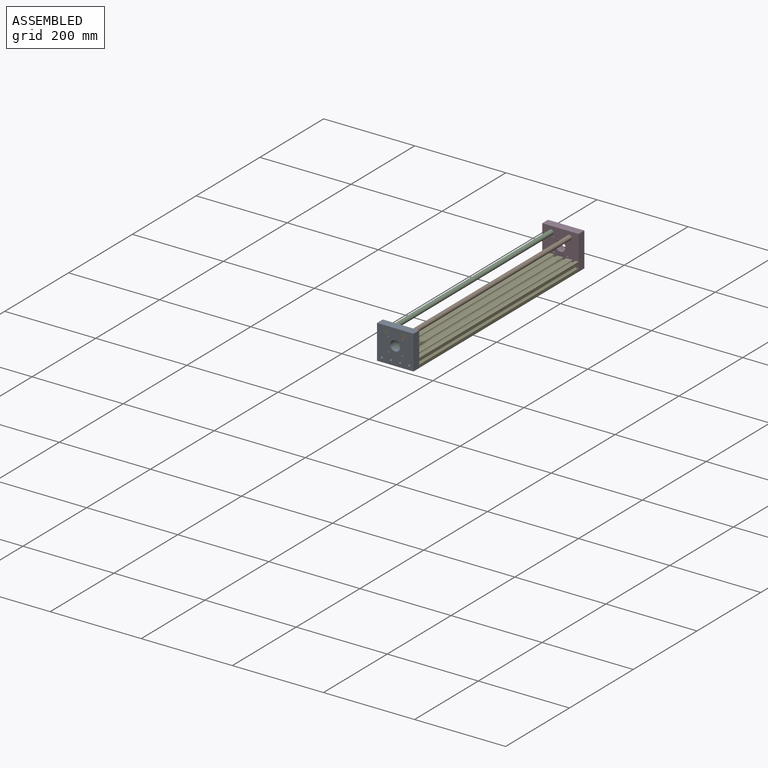
[diagram: assembled view]
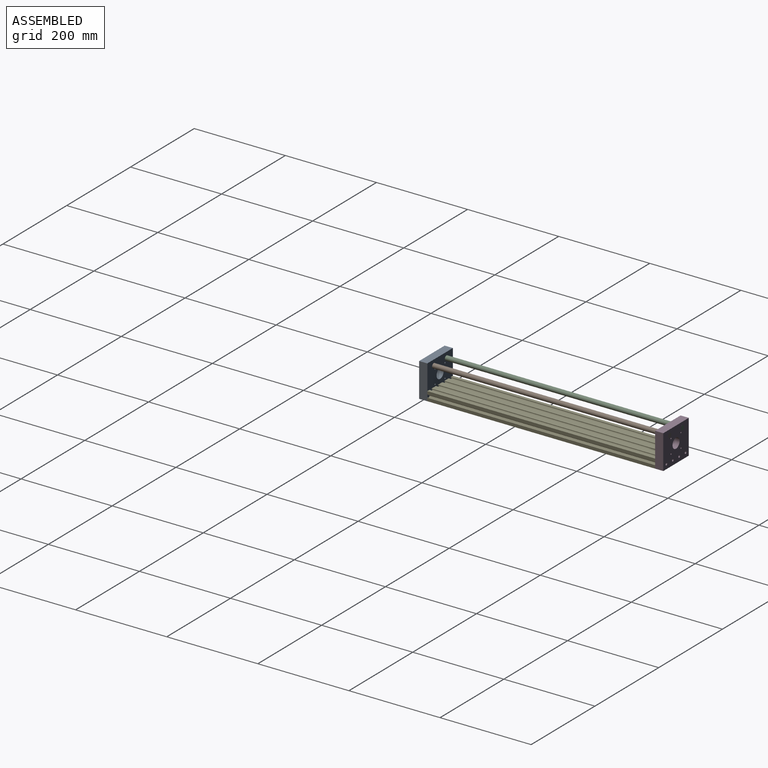
[diagram: assembled view, second angle]
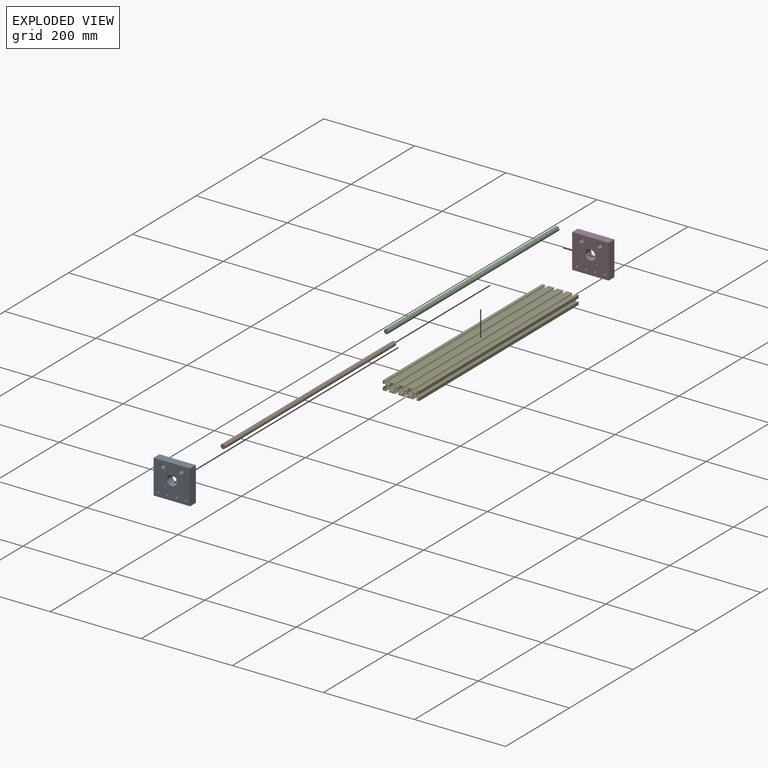
[diagram: exploded view]
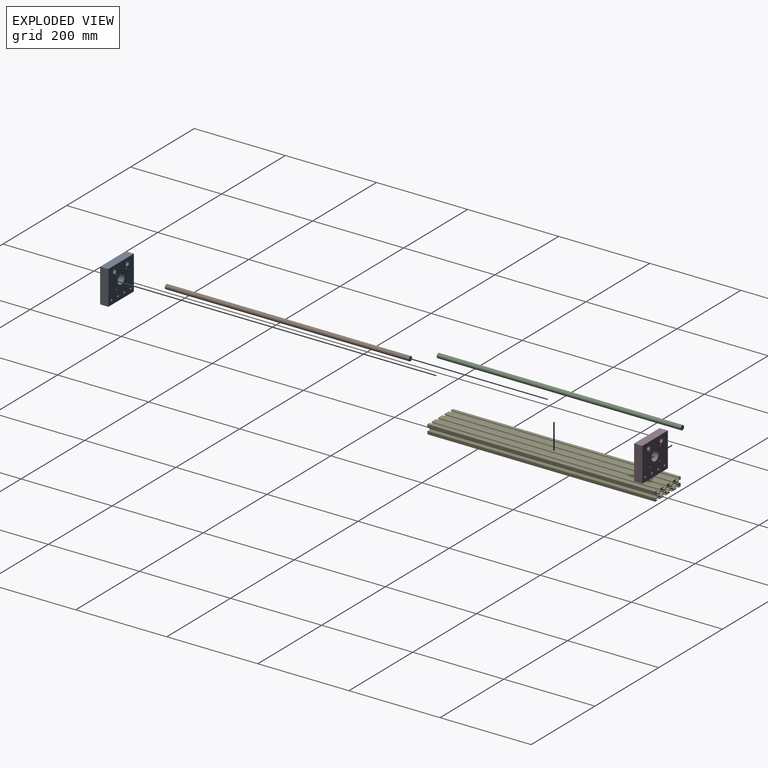
[diagram: exploded view, second angle]
ASSEMBLY  parts=5 mates=4
PART A: 17 faces, bbox 80x18x75 mm
  f0: plane 75x18mm, normal (-1,0,0), area 1350mm2, adj f1,f6,f15,f16
  f1: plane 80x18mm, normal (0,0,-1), area 1440mm2, adj f0,f2,f15,f16
  f2: plane 75x18mm, normal (1,0,0), area 1350mm2, adj f1,f6,f15,f16
  f3: cylinder r=2.5mm len=18mm, axis (0,1,0), area 282.7mm2, adj f15,f16
  f4: cylinder r=2.5mm len=18mm, axis (0,1,0), area 282.7mm2, adj f15,f16
  f5: cylinder r=2.5mm len=18mm, axis (0,1,0), area 282.7mm2, adj f15,f16
  f6: plane 80x18mm, normal (0,0,1), area 1440mm2, adj f0,f2,f15,f16
  f7: cylinder r=5mm len=18mm, axis (0,1,0), area 565.5mm2, adj f15,f16
  f8: cylinder r=11mm len=22mm, axis (0,1,0), area 1244.1mm2, adj f15,f16
  f9: cylinder r=1.5mm len=18mm, axis (0,1,0), area 169.6mm2, adj f15,f16
  f10: cylinder r=1.5mm len=18mm, axis (0,1,0), area 169.6mm2, adj f15,f16
  f11: cylinder r=1.5mm len=18mm, axis (0,1,0), area 169.6mm2, adj f15,f16
  f12: cylinder r=1.5mm len=18mm, axis (0,1,0), area 169.6mm2, adj f15,f16
  f13: cylinder r=5mm len=18mm, axis (0,1,0), area 565.5mm2, adj f15,f16
  f14: cylinder r=2.5mm len=18mm, axis (0,1,0), area 282.7mm2, adj f15,f16
  f15: plane 80x75mm, normal (0,-1,0), area 5356mm2, adj f0,f1,f2,f3,f4,f5,f6,f7
  f16: plane 80x75mm, normal (0,1,0), area 5356mm2, adj f0,f1,f2,f3,f4,f5,f6,f7
PART B: 3 faces, bbox 10x10x536 mm
  f0: plane 10x10mm, normal (0,0,1), area 78.5mm2, adj f1
  f1: cylinder r=5mm len=536mm, axis (0,0,1), area 16838.9mm2, adj f0,f2
  f2: plane 10x10mm, normal (0,0,-1), area 78.5mm2, adj f1
PART C: same geometry as B
PART D: same geometry as A
PART E: 126 faces, bbox 80x500x20 mm
  f0: cylinder r=3.2mm len=500mm, axis (0,1,0), area 1807.6mm2, adj f1,f117,f124,f125
  f1: plane 500x5.9mm, normal (0.71,0,-0.71), area 4169.9mm2, adj f0,f2,f124,f125
  f2: plane 500x0.99mm, normal (0.71,0,-0.71), area 700mm2, adj f1,f3,f124,f125
  f3: plane 500x0.82mm, normal (0,0,-1), area 410mm2, adj f2,f4,f124,f125
  f4: plane 500x0.99mm, normal (-0.71,0,-0.71), area 700mm2, adj f3,f5,f124,f125
  f5: plane 500x5.9mm, normal (-0.71,0,-0.71), area 4169.9mm2, adj f4,f6,f124,f125
  f6: cylinder r=3.2mm len=500mm, axis (0,1,0), area 1807.6mm2, adj f5,f7,f124,f125
  f7: plane 500x5.9mm, normal (-0.71,0,0.71), area 4169.9mm2, adj f6,f8,f124,f125
  f8: plane 500x0.99mm, normal (-0.71,0,0.71), area 700mm2, adj f7,f9,f124,f125
  f9: plane 500x0.82mm, normal (0,0,1), area 410mm2, adj f8,f10,f124,f125
  f10: plane 500x0.99mm, normal (0.71,0,0.71), area 700mm2, adj f9,f117,f124,f125
  f11: plane 500x5.9mm, normal (0.71,0,0.71), area 4169.9mm2, adj f12,f118,f124,f125
  f12: cylinder r=3.2mm len=500mm, axis (0,1,0), area 1807.6mm2, adj f11,f13,f124,f125
  f13: plane 500x5.9mm, normal (0.71,0,-0.71), area 4169.9mm2, adj f12,f14,f124,f125
  f14: plane 500x0.99mm, normal (0.71,0,-0.71), area 700mm2, adj f13,f15,f124,f125
  f15: plane 500x0.82mm, normal (0,0,-1), area 410mm2, adj f14,f16,f124,f125
  f16: plane 500x0.99mm, normal (-0.71,0,-0.71), area 700mm2, adj f15,f17,f124,f125
  f17: plane 500x5.9mm, normal (-0.71,0,-0.71), area 4169.9mm2, adj f16,f18,f124,f125
  f18: cylinder r=3.2mm len=500mm, axis (0,1,0), area 1807.6mm2, adj f17,f19,f124,f125
  f19: plane 500x5.9mm, normal (-0.71,0,0.71), area 4169.9mm2, adj f18,f20,f124,f125
  f20: plane 500x0.99mm, normal (-0.71,0,0.71), area 700mm2, adj f19,f21,f124,f125
  f21: plane 500x0.82mm, normal (0,0,1), area 410mm2, adj f20,f118,f124,f125
  f22: plane 500x5.9mm, normal (0.71,0,0.71), area 4169.9mm2, adj f23,f121,f124,f125
  f23: cylinder r=3.2mm len=500mm, axis (0,1,0), area 1807.6mm2, adj f22,f24,f124,f125
  f24: plane 500x5.9mm, normal (0.71,0,-0.71), area 4169.9mm2, adj f23,f25,f124,f125
  f25: plane 500x0.99mm, normal (0.71,0,-0.71), area 700mm2, adj f24,f26,f124,f125
  f26: plane 500x0.82mm, normal (0,0,-1), area 410mm2, adj f25,f27,f124,f125
  f27: plane 500x0.99mm, normal (-0.71,0,-0.71), area 700mm2, adj f26,f28,f124,f125
  f28: plane 500x5.9mm, normal (-0.71,0,-0.71), area 4169.9mm2, adj f27,f29,f124,f125
  f29: cylinder r=3.2mm len=500mm, axis (0,1,0), area 1807.6mm2, adj f28,f30,f124,f125
  f30: plane 500x5.9mm, normal (-0.71,0,0.71), area 4169.9mm2, adj f29,f31,f124,f125
  f31: plane 500x0.99mm, normal (-0.71,0,0.71), area 700mm2, adj f30,f32,f124,f125
  f32: plane 500x0.82mm, normal (0,0,1), area 410mm2, adj f31,f121,f124,f125
  f33: plane 500x5.9mm, normal (-0.71,0,0.71), area 4169.9mm2, adj f34,f122,f124,f125
  f34: cylinder r=3.2mm len=500mm, axis (0,1,0), area 1807.6mm2, adj f33,f35,f124,f125
  f35: plane 500x5.9mm, normal (0.71,0,0.71), area 4169.9mm2, adj f34,f36,f124,f125
  f36: plane 500x4.46mm, normal (0,0,-1), area 2230mm2, adj f35,f37,f124,f125
  f37: plane 500x1.4mm, normal (1,0,0), area 700mm2, adj f36,f38,f124,f125
  f38: plane 500x13.7mm, normal (0,0,1), area 6850mm2, adj f37,f39,f124,f125
  f39: plane 500x1.4mm, normal (-1,0,0), area 700mm2, adj f38,f40,f124,f125
  f40: plane 500x4.46mm, normal (0,0,-1), area 2230mm2, adj f39,f41,f124,f125
  f41: plane 500x5.9mm, normal (-0.71,0,0.71), area 4169.9mm2, adj f40,f42,f124,f125
  f42: cylinder r=3.2mm len=500mm, axis (0,1,0), area 1807.6mm2, adj f41,f43,f124,f125
  f43: plane 500x5.9mm, normal (0.71,0,0.71), area 4169.9mm2, adj f42,f44,f124,f125
  f44: plane 500x4.46mm, normal (0,0,-1), area 2230mm2, adj f43,f45,f124,f125
  f45: plane 500x1.4mm, normal (1,0,0), area 700mm2, adj f44,f46,f124,f125
  f46: plane 500x13.7mm, normal (0,0,1), area 6850mm2, adj f45,f47,f124,f125
  f47: plane 500x1.4mm, normal (-1,0,0), area 700mm2, adj f46,f48,f124,f125
  f48: plane 500x4.46mm, normal (0,0,-1), area 2230mm2, adj f47,f49,f124,f125
  f49: plane 500x5.9mm, normal (-0.71,0,0.71), area 4169.9mm2, adj f48,f50,f124,f125
  f50: cylinder r=3.2mm len=500mm, axis (0,1,0), area 1807.6mm2, adj f49,f51,f124,f125
  f51: plane 500x5.9mm, normal (0.71,0,0.71), area 4169.9mm2, adj f50,f52,f124,f125
  f52: plane 500x4.46mm, normal (0,0,-1), area 2230mm2, adj f51,f53,f124,f125
  f53: plane 500x1.4mm, normal (1,0,0), area 700mm2, adj f52,f54,f124,f125
  f54: plane 500x13.7mm, normal (0,0,1), area 6850mm2, adj f53,f55,f124,f125
  f55: plane 500x1.4mm, normal (-1,0,0), area 700mm2, adj f54,f56,f124,f125
  f56: plane 500x4.46mm, normal (0,0,-1), area 2230mm2, adj f55,f57,f124,f125
  f57: plane 500x5.9mm, normal (-0.71,0,0.71), area 4169.9mm2, adj f56,f58,f124,f125
  f58: cylinder r=3.2mm len=500mm, axis (0,1,0), area 1807.6mm2, adj f57,f59,f124,f125
  f59: plane 500x5.9mm, normal (0.71,0,0.71), area 4169.9mm2, adj f58,f60,f124,f125
  f60: plane 500x4.46mm, normal (0,0,-1), area 2230mm2, adj f59,f61,f124,f125
  f61: plane 500x1.4mm, normal (1,0,0), area 700mm2, adj f60,f62,f124,f125
  f62: plane 500x6.85mm, normal (0,0,1), area 3425mm2, adj f61,f63,f124,f125
  f63: plane 500x6.85mm, normal (-1,0,0), area 3425mm2, adj f62,f64,f124,f125
  f64: plane 500x1.4mm, normal (0,0,-1), area 700mm2, adj f63,f65,f124,f125
  f65: plane 500x4.46mm, normal (1,0,0), area 2230mm2, adj f64,f66,f124,f125
  f66: plane 500x5.9mm, normal (-0.71,0,-0.71), area 4169.9mm2, adj f65,f67,f124,f125
  f67: cylinder r=3.2mm len=500mm, axis (0,1,0), area 1807.6mm2, adj f66,f68,f124,f125
  f68: plane 500x5.9mm, normal (-0.71,0,0.71), area 4169.9mm2, adj f67,f69,f124,f125
  f69: plane 500x4.46mm, normal (1,0,0), area 2230mm2, adj f68,f70,f124,f125
  f70: plane 500x1.4mm, normal (0,0,1), area 700mm2, adj f69,f71,f124,f125
  f71: plane 500x6.85mm, normal (-1,0,0), area 3425mm2, adj f70,f72,f124,f125
  f72: plane 500x6.85mm, normal (0,0,-1), area 3425mm2, adj f71,f73,f124,f125
  f73: plane 500x1.4mm, normal (1,0,0), area 700mm2, adj f72,f74,f124,f125
  f74: plane 500x4.46mm, normal (0,0,1), area 2230mm2, adj f73,f75,f124,f125
  f75: plane 500x5.9mm, normal (0.71,0,-0.71), area 4169.9mm2, adj f74,f76,f124,f125
  f76: cylinder r=3.2mm len=500mm, axis (0,1,0), area 1807.6mm2, adj f75,f77,f124,f125
  f77: plane 500x5.9mm, normal (-0.71,0,-0.71), area 4169.9mm2, adj f76,f78,f124,f125
  f78: plane 500x4.46mm, normal (0,0,1), area 2230mm2, adj f77,f79,f124,f125
  f79: plane 500x1.4mm, normal (-1,0,0), area 700mm2, adj f78,f80,f124,f125
  f80: plane 500x13.7mm, normal (0,0,-1), area 6850mm2, adj f79,f81,f124,f125
  f81: plane 500x1.4mm, normal (1,0,0), area 700mm2, adj f80,f82,f124,f125
  f82: plane 500x4.46mm, normal (0,0,1), area 2230mm2, adj f81,f83,f124,f125
  f83: plane 500x5.9mm, normal (0.71,0,-0.71), area 4169.9mm2, adj f82,f84,f124,f125
  f84: cylinder r=3.2mm len=500mm, axis (0,1,0), area 1807.6mm2, adj f83,f85,f124,f125
  f85: plane 500x5.9mm, normal (-0.71,0,-0.71), area 4169.9mm2, adj f84,f86,f124,f125
  f86: plane 500x4.46mm, normal (0,0,1), area 2230mm2, adj f85,f87,f124,f125
  f87: plane 500x1.4mm, normal (-1,0,0), area 700mm2, adj f86,f88,f124,f125
  f88: plane 500x13.7mm, normal (0,0,-1), area 6850mm2, adj f87,f89,f124,f125
  f89: plane 500x1.4mm, normal (1,0,0), area 700mm2, adj f88,f90,f124,f125
  f90: plane 500x4.46mm, normal (0,0,1), area 2230mm2, adj f89,f91,f124,f125
  f91: plane 500x5.9mm, normal (0.71,0,-0.71), area 4169.9mm2, adj f90,f92,f124,f125
  f92: cylinder r=3.2mm len=500mm, axis (0,1,0), area 1807.6mm2, adj f91,f93,f124,f125
  f93: plane 500x5.9mm, normal (-0.71,0,-0.71), area 4169.9mm2, adj f92,f94,f124,f125
  f94: plane 500x4.46mm, normal (0,0,1), area 2230mm2, adj f93,f95,f124,f125
  f95: plane 500x1.4mm, normal (-1,0,0), area 700mm2, adj f94,f96,f124,f125
  f96: plane 500x13.7mm, normal (0,0,-1), area 6850mm2, adj f95,f97,f124,f125
  f97: plane 500x1.4mm, normal (1,0,0), area 700mm2, adj f96,f98,f124,f125
  f98: plane 500x4.46mm, normal (0,0,1), area 2230mm2, adj f97,f99,f124,f125
  f99: plane 500x5.9mm, normal (0.71,0,-0.71), area 4169.9mm2, adj f98,f100,f124,f125
  f100: cylinder r=3.2mm len=500mm, axis (0,1,0), area 1807.6mm2, adj f99,f101,f124,f125
  f101: plane 500x5.9mm, normal (-0.71,0,-0.71), area 4169.9mm2, adj f100,f102,f124,f125
  f102: plane 500x4.46mm, normal (0,0,1), area 2230mm2, adj f101,f103,f124,f125
  f103: plane 500x1.4mm, normal (-1,0,0), area 700mm2, adj f102,f104,f124,f125
  f104: plane 500x6.85mm, normal (0,0,-1), area 3425mm2, adj f103,f105,f124,f125
  f105: plane 500x6.85mm, normal (1,0,0), area 3425mm2, adj f104,f106,f124,f125
  f106: plane 500x1.4mm, normal (0,0,1), area 700mm2, adj f105,f107,f124,f125
  f107: plane 500x4.46mm, normal (-1,0,0), area 2230mm2, adj f106,f108,f124,f125
  f108: plane 500x5.9mm, normal (0.71,0,0.71), area 4169.9mm2, adj f107,f109,f124,f125
  f109: cylinder r=3.2mm len=500mm, axis (0,1,0), area 1807.6mm2, adj f108,f110,f124,f125
  f110: plane 500x5.9mm, normal (0.71,0,-0.71), area 4169.9mm2, adj f109,f111,f124,f125
  f111: plane 500x4.46mm, normal (-1,0,0), area 2230mm2, adj f110,f112,f124,f125
  f112: plane 500x1.4mm, normal (0,0,-1), area 700mm2, adj f111,f113,f124,f125
  f113: plane 500x6.85mm, normal (1,0,0), area 3425mm2, adj f112,f114,f124,f125
  f114: plane 500x6.85mm, normal (0,0,1), area 3425mm2, adj f113,f115,f124,f125
  f115: plane 500x1.4mm, normal (-1,0,0), area 700mm2, adj f114,f122,f124,f125
  f116: cylinder r=2.5mm len=500mm, axis (0,1,0), area 7854mm2, adj f124,f125
  f117: plane 500x5.9mm, normal (0.71,0,0.71), area 4169.9mm2, adj f0,f10,f124,f125
  f118: plane 500x0.99mm, normal (0.71,0,0.71), area 700mm2, adj f11,f21,f124,f125
  f119: cylinder r=2.5mm len=500mm, axis (0,1,0), area 7854mm2, adj f124,f125
  f120: cylinder r=2.5mm len=500mm, axis (0,1,0), area 7854mm2, adj f124,f125
  f121: plane 500x0.99mm, normal (0.71,0,0.71), area 700mm2, adj f22,f32,f124,f125
  f122: plane 500x4.46mm, normal (0,0,-1), area 2230mm2, adj f33,f115,f124,f125
  f123: cylinder r=2.5mm len=500mm, axis (0,1,0), area 7854mm2, adj f124,f125
  f124: plane 80x20mm, normal (0,-1,0), area 433.5mm2, adj f0,f1,f2,f3,f4,f5,f6,f7
  f125: plane 80x20mm, normal (0,1,0), area 433.5mm2, adj f0,f1,f2,f3,f4,f5,f6,f7
PLACE A t=(0,-500,0)mm
PLACE B rot(axis=(-1,0,0),90deg) t=(20,-443.11,53)mm
PLACE C rot(axis=(-1,0,0),90deg) t=(-20,-443.11,53)mm
PLACE D t=(0,18,0)mm
PLACE E at identity
MATE fastened D.f5 <-> E.f119  axis (0,-1,0) through (-30,0,0)mm
MATE fastened C.f1 <-> D.f13  axis (0,1,0) through (-20,18,53)mm
MATE fastened A.f4 <-> E.f116  axis (0,1,0) through (30,-500,0)mm
MATE fastened B.f1 <-> D.f7  axis (0,1,0) through (20,18,53)mm
